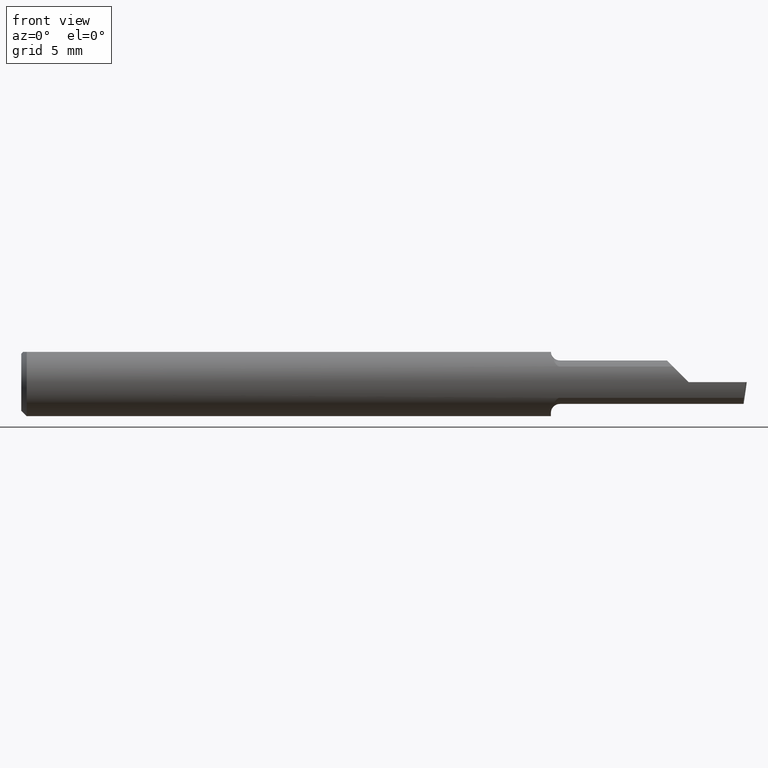
[diagram: clean part render]
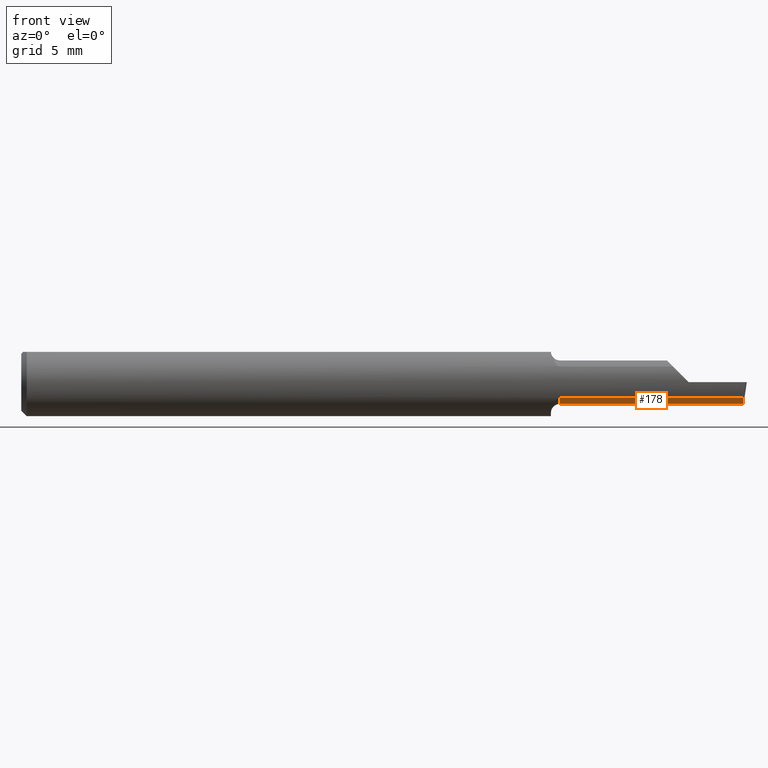
[diagram: same view with one face highlighted and labeled with its STEP entity id]
A machine part, front view. The second image highlights one B-rep face of the part: STEP entity #178.
In plain terms, the highlighted cylindrical surface (edge-blend (fillet) strip) has radius 1.5215 mm, axis along (-1, -0, -0).
Its self-contained STEP definition (entity closure, byte-faithful):
#13 = CARTESIAN_POINT ( 'NONE',  ( 1.990393312970557327, -0.04150000000000000216, -0.05990000000000000185 ) ) ;
#24 = VECTOR ( 'NONE', #215, 39.37007874015748143 ) ;
#29 = DIRECTION ( 'NONE',  ( 0.0000000000000000000, 0.0000000000000000000, 1.000000000000000000 ) ) ;
#48 = EDGE_CURVE ( 'NONE', #319, #659, #655, .T. ) ;
#106 = VECTOR ( 'NONE', #309, 39.37007874015748143 ) ;
#115 = DIRECTION ( 'NONE',  ( -1.000000000000000000, 5.691349986800549142E-18, -0.0000000000000000000 ) ) ;
#121 = CARTESIAN_POINT ( 'NONE',  ( 1.991365359011874947, -0.08307469879518075695, -0.04312255117789293157 ) ) ;
#129 = CARTESIAN_POINT ( 'NONE',  ( 1.854999999999999982, -0.04150000000000000216, -0.05990000000000000185 ) ) ;
#149 = EDGE_CURVE ( 'NONE', #651, #659, #584, .T. ) ;
#178 = ADVANCED_FACE ( 'NONE', ( #567 ), #298, .T. ) ;
#191 = EDGE_CURVE ( 'NONE', #651, #228, #574, .T. ) ;
#194 = AXIS2_PLACEMENT_3D ( 'NONE', #254, #259, #626 ) ;
#215 = DIRECTION ( 'NONE',  ( -1.000000000000000000, -0.0000000000000000000, -0.0000000000000000000 ) ) ;
#228 = VERTEX_POINT ( 'NONE', #229 ) ;
#229 = CARTESIAN_POINT ( 'NONE',  ( 1.990393312970557327, -0.04150000000000000216, -0.05990000000000000185 ) ) ;
#247 = VERTEX_POINT ( 'NONE', #129 ) ;
#254 = CARTESIAN_POINT ( 'NONE',  ( 0.0000000000000000000, -0.04150000000000000216, 0.0000000000000000000 ) ) ;
#259 = DIRECTION ( 'NONE',  ( -1.000000000000000000, -0.0000000000000000000, -0.0000000000000000000 ) ) ;
#266 = CARTESIAN_POINT ( 'NONE',  ( 1.989982066092358171, -0.05720488466914006032, -0.05989999999999998798 ) ) ;
#292 = EDGE_LOOP ( 'NONE', ( #363, #478, #641, #431, #401 ) ) ;
#298 = CYLINDRICAL_SURFACE ( 'NONE', #194, 0.05989999999999998798 ) ;
#309 = DIRECTION ( 'NONE',  ( -1.000000000000000000, -0.0000000000000000000, -0.0000000000000000000 ) ) ;
#314 = CARTESIAN_POINT ( 'NONE',  ( 1.669999999999999929, -0.08307469879518075695, -0.04312255117789293157 ) ) ;
#319 = VERTEX_POINT ( 'NONE', #326 ) ;
#326 = CARTESIAN_POINT ( 'NONE',  ( 1.484999999999999876, -0.04149999999999999523, -0.05989999999999996022 ) ) ;
#352 = VECTOR ( 'NONE', #115, 39.37007874015748143 ) ;
#363 = ORIENTED_EDGE ( 'NONE', *, *, #484, .F. ) ;
#364 = CARTESIAN_POINT ( 'NONE',  ( 0.0000000000000000000, -0.04149999999999999523, -0.05989999999999998798 ) ) ;
#401 = ORIENTED_EDGE ( 'NONE', *, *, #48, .F. ) ;
#428 = CARTESIAN_POINT ( 'NONE',  ( 1.484999999999999876, -0.04150000000000000216, 0.0000000000000000000 ) ) ;
#431 = ORIENTED_EDGE ( 'NONE', *, *, #149, .T. ) ;
#436 = DIRECTION ( 'NONE',  ( -1.000000000000000000, -0.0000000000000000000, -0.0000000000000000000 ) ) ;
#456 = LINE ( 'NONE', #530, #352 ) ;
#462 = CARTESIAN_POINT ( 'NONE',  ( 1.991365359011874947, -0.08307469879518075695, -0.04312255117789293157 ) ) ;
#478 = ORIENTED_EDGE ( 'NONE', *, *, #640, .F. ) ;
#484 = EDGE_CURVE ( 'NONE', #247, #319, #533, .T. ) ;
#514 = AXIS2_PLACEMENT_3D ( 'NONE', #428, #436, #29 ) ;
#518 = CARTESIAN_POINT ( 'NONE',  ( 1.484999999999999876, -0.08307469879518097899, -0.04312255117789268177 ) ) ;
#530 = CARTESIAN_POINT ( 'NONE',  ( 2.000000000000000000, -0.04150000000000000216, -0.05990000000000000185 ) ) ;
#533 = LINE ( 'NONE', #364, #106 ) ;
#567 = FACE_OUTER_BOUND ( 'NONE', #292, .T. ) ;
#574 =( BOUNDED_CURVE ( )  B_SPLINE_CURVE ( 3, ( #121, #585, #266, #13 ),
 .UNSPECIFIED., .F., .T. ) 
 B_SPLINE_CURVE_WITH_KNOTS ( ( 4, 4 ),
 ( 5.726109673675775724, 6.493234751459703524 ),
 .UNSPECIFIED. ) 
 CURVE ( )  GEOMETRIC_REPRESENTATION_ITEM ( )  RATIONAL_B_SPLINE_CURVE ( ( 1.000000000000000000, 0.9515582177473689285, 0.9515582177473689285, 1.000000000000000000 ) ) 
 REPRESENTATION_ITEM ( '' )  );
#584 = LINE ( 'NONE', #314, #24 ) ;
#585 = CARTESIAN_POINT ( 'NONE',  ( 1.990322576363892537, -0.07176861043311234811, -0.05402281578110743054 ) ) ;
#626 = DIRECTION ( 'NONE',  ( 0.0000000000000000000, 0.0000000000000000000, 1.000000000000000000 ) ) ;
#640 = EDGE_CURVE ( 'NONE', #228, #247, #456, .T. ) ;
#641 = ORIENTED_EDGE ( 'NONE', *, *, #191, .F. ) ;
#651 = VERTEX_POINT ( 'NONE', #462 ) ;
#655 = CIRCLE ( 'NONE', #514, 0.05989999999999996022 ) ;
#659 = VERTEX_POINT ( 'NONE', #518 ) ;